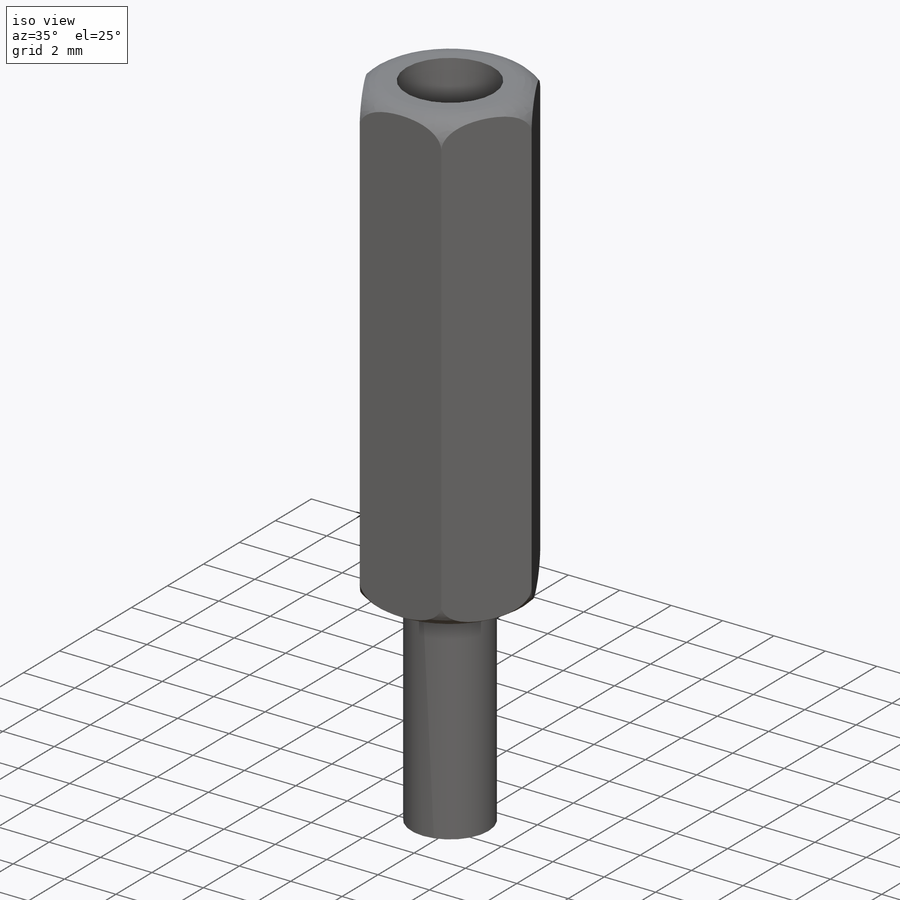
[diagram: iso view]
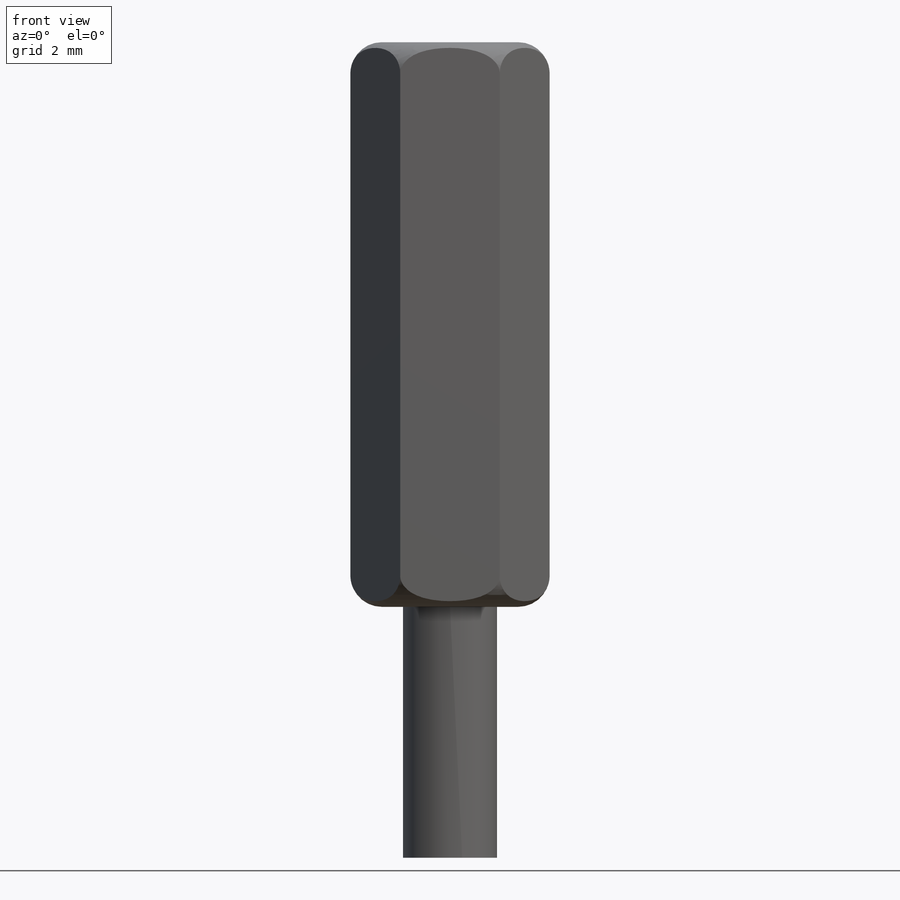
[diagram: front view]
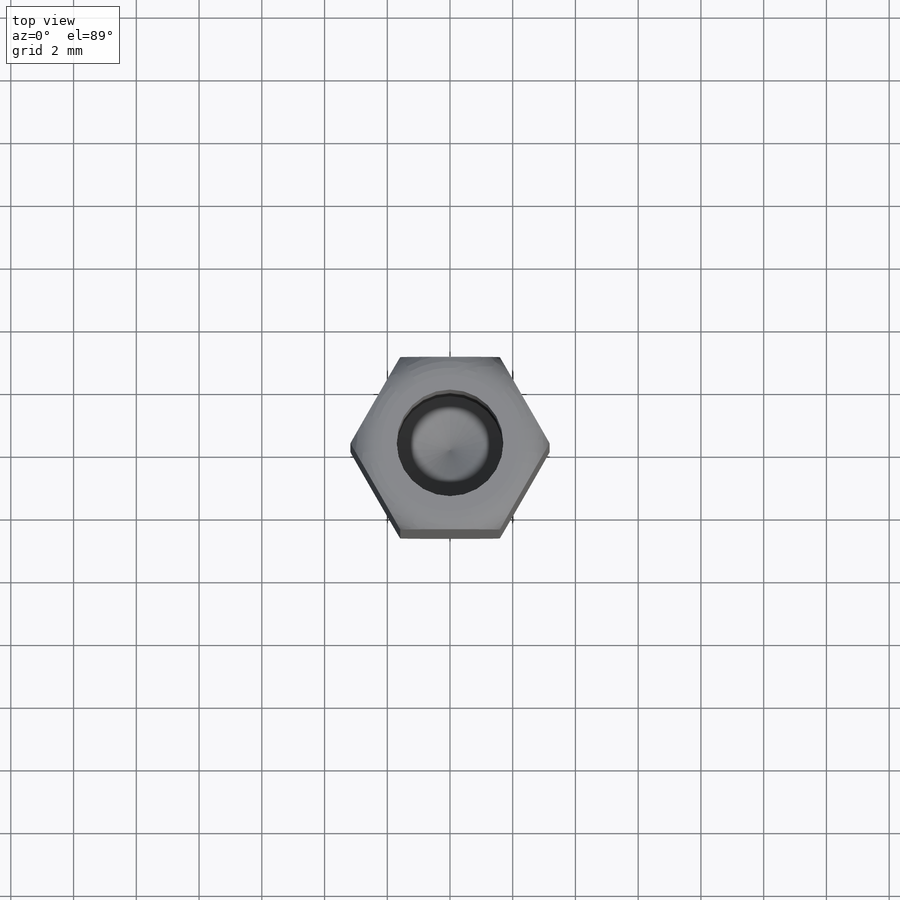
[diagram: top view]
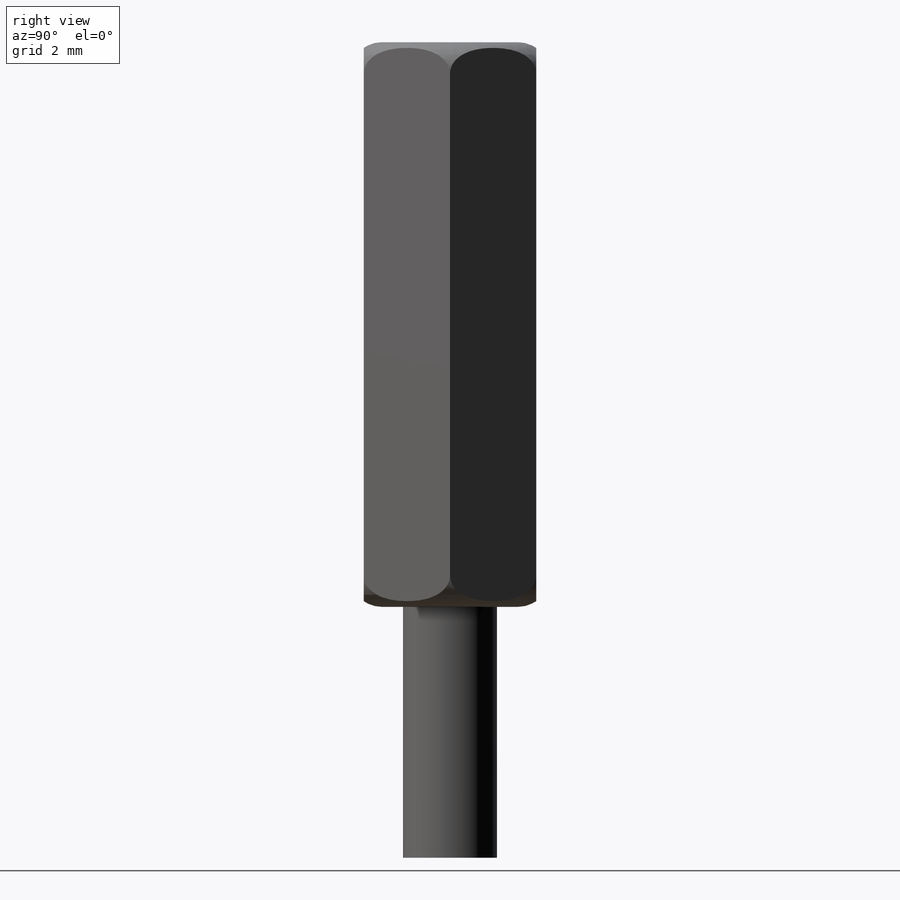
[diagram: right view]
SOLIDWORKS PART (.sldprt)
format: sldprt  version: not decoded by parser v0  size: 216,576 bytes
history: native  units: mm
features: sketch x5, extrude x2, material x1, hole x1, cut_revolve x1 (+11 scaffold rows collapsed)
feature tree (21):
  scaffold x11  (default folders/planes/origin — collapsed)
  material  "Brass"
  sketch  "Sketch1"  dims[D1=5.5mm]
  extrude  "Boss-Extrude1"  Depth=18mm
  hole  "M3 Clearance Hole1"  Diameter=3.4mm Depth=12mm
  sketch  "Sketch3"
  sketch  "Sketch2"  dims[hole-wizard template sketch: 50 standard entries collapsed; hole parameters above]
  sketch  "Sketch4"  dims[D1=1.0mm]
  cut_revolve  "Cut-Revolve1"  Angle=360deg
  sketch  "Sketch5"  dims[D1=3.0mm]
  extrude  "Boss-Extrude2"  Depth=8mm
decode coverage: 8 of 9 modeling features carry decoded parameters
note: ~ marks probable driven/reference dimensions
note: suppression state not decoded; provenance and decode notes live in map.json
